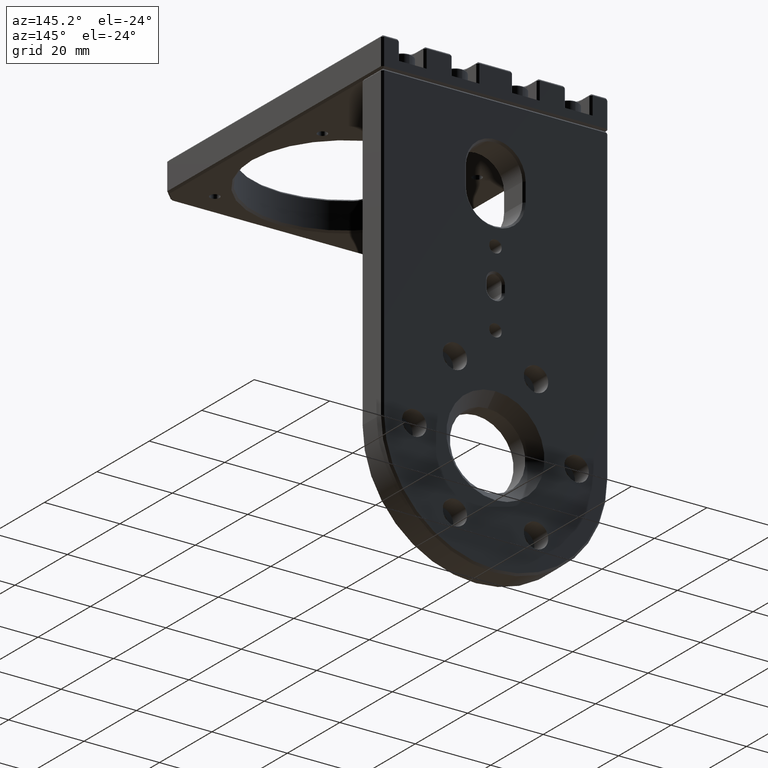
[diagram: clean part render]
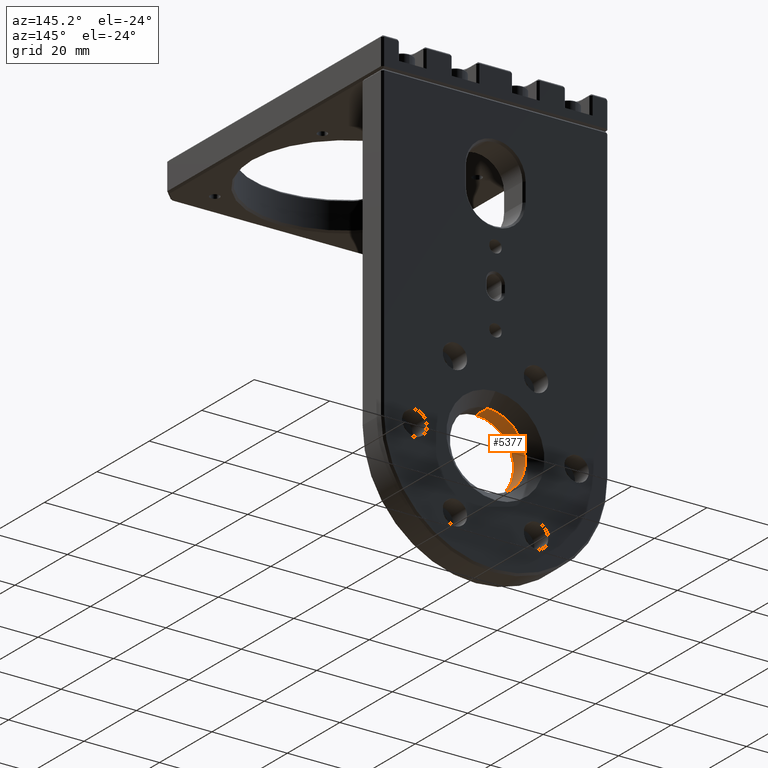
[diagram: same view with one face highlighted and labeled with its STEP entity id]
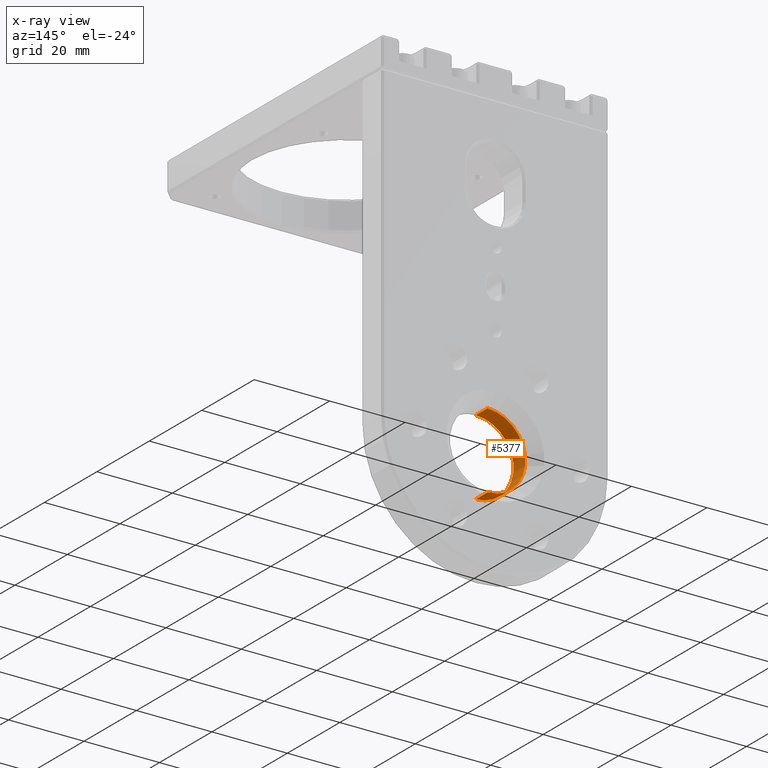
[diagram: x-ray of the same camera — body ghosted, the highlighted face saturated]
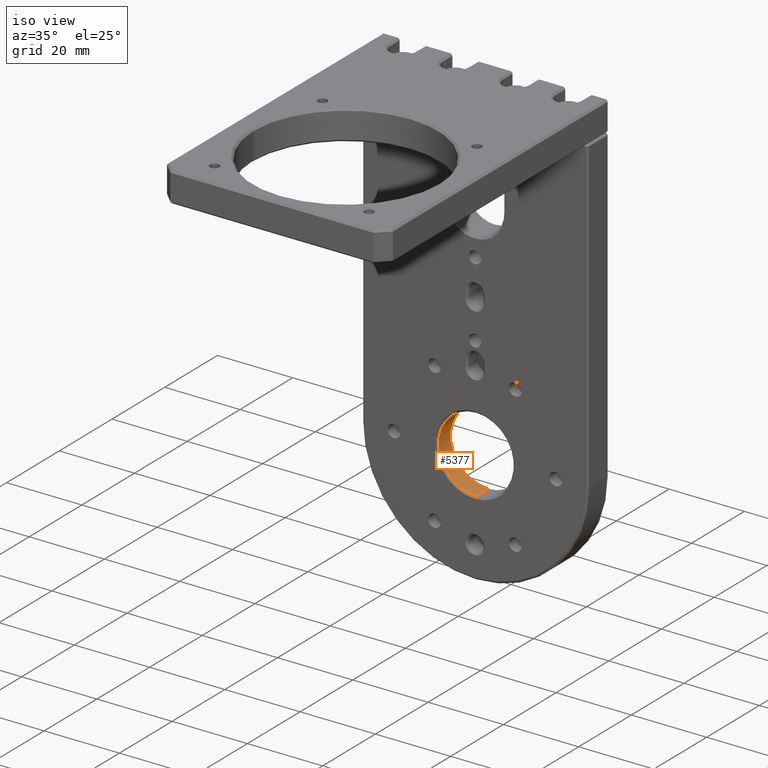
[diagram: same view with one face highlighted and labeled with its STEP entity id]
A machine part, auxiliary view. The second image highlights one B-rep face of the part: STEP entity #5377.
The next image is the same camera in x-ray: the body ghosted, the highlighted face saturated — about 0% of this face is hidden behind the body in this view.
A second angle (iso view) of the same face is appended — the face is thin or edge-on in the first view.
In plain terms, the highlighted cylindrical surface (partial cylindrical patch) has radius 10 mm, axis along (0, -1, -0).
Its self-contained STEP definition (entity closure, byte-faithful):
#374 = DIRECTION ( 'NONE',  ( 1.110223024625157172E-14, 0.0000000000000000000, 1.000000000000000000 ) ) ;
#435 = DIRECTION ( 'NONE',  ( -3.491481338843133355E-15, 1.000000000000000000, 3.657132581846951845E-29 ) ) ;
#813 = LINE ( 'NONE', #6496, #5959 ) ;
#853 = FACE_OUTER_BOUND ( 'NONE', #7158, .T. ) ;
#964 = VERTEX_POINT ( 'NONE', #6942 ) ;
#1040 = CARTESIAN_POINT ( 'NONE',  ( 135.1860777088450902, 141.2181840001565831, 113.4864618752671959 ) ) ;
#1222 = VERTEX_POINT ( 'NONE', #3513 ) ;
#1447 = VERTEX_POINT ( 'NONE', #3986 ) ;
#1466 = EDGE_CURVE ( 'NONE', #1222, #1447, #813, .T. ) ;
#1501 = CYLINDRICAL_SURFACE ( 'NONE', #2304, 9.999999999999994671 ) ;
#1580 = ORIENTED_EDGE ( 'NONE', *, *, #1466, .F. ) ;
#1638 = CARTESIAN_POINT ( 'NONE',  ( 135.1860777088449765, 138.2181840001565831, 103.4864618752671959 ) ) ;
#1768 = EDGE_CURVE ( 'NONE', #964, #1447, #2631, .T. ) ;
#2304 = AXIS2_PLACEMENT_3D ( 'NONE', #2748, #6409, #374 ) ;
#2631 = CIRCLE ( 'NONE', #7769, 9.999999999999994671 ) ;
#2748 = CARTESIAN_POINT ( 'NONE',  ( 135.1860777088449765, 141.2181840001565831, 103.4864618752671959 ) ) ;
#3089 = VECTOR ( 'NONE', #4657, 1000.000000000000000 ) ;
#3172 = CARTESIAN_POINT ( 'NONE',  ( 135.1860777088450050, 133.7181840001565831, 103.4864618752671959 ) ) ;
#3188 = ORIENTED_EDGE ( 'NONE', *, *, #4744, .T. ) ;
#3513 = CARTESIAN_POINT ( 'NONE',  ( 135.1860777088448913, 138.2181840001565831, 93.48646187526719586 ) ) ;
#3917 = DIRECTION ( 'NONE',  ( 8.326672684688678786E-15, 0.0000000000000000000, 1.000000000000000000 ) ) ;
#3986 = CARTESIAN_POINT ( 'NONE',  ( 135.1860777088448913, 133.7181840001565831, 93.48646187526719586 ) ) ;
#4264 = DIRECTION ( 'NONE',  ( 1.110223024625157172E-14, 0.0000000000000000000, 1.000000000000000000 ) ) ;
#4657 = DIRECTION ( 'NONE',  ( 3.491481338843133355E-15, -1.000000000000000000, -3.657132581846951845E-29 ) ) ;
#4744 = EDGE_CURVE ( 'NONE', #1222, #5154, #6791, .T. ) ;
#5154 = VERTEX_POINT ( 'NONE', #5485 ) ;
#5249 = AXIS2_PLACEMENT_3D ( 'NONE', #1638, #435, #3917 ) ;
#5377 = ADVANCED_FACE ( 'NONE', ( #853 ), #1501, .F. ) ;
#5485 = CARTESIAN_POINT ( 'NONE',  ( 135.1860777088450902, 138.2181840001565831, 113.4864618752671959 ) ) ;
#5725 = DIRECTION ( 'NONE',  ( 3.491481338843133355E-15, -1.000000000000000000, -3.657132581846951845E-29 ) ) ;
#5959 = VECTOR ( 'NONE', #5725, 1000.000000000000000 ) ;
#5981 = LINE ( 'NONE', #1040, #3089 ) ;
#6201 = DIRECTION ( 'NONE',  ( 3.491481338843133355E-15, -1.000000000000000000, -3.657132581846951845E-29 ) ) ;
#6409 = DIRECTION ( 'NONE',  ( 3.491481338843133355E-15, -1.000000000000000000, -3.657132581846951845E-29 ) ) ;
#6496 = CARTESIAN_POINT ( 'NONE',  ( 135.1860777088448629, 141.2181840001565831, 93.48646187526719586 ) ) ;
#6791 = CIRCLE ( 'NONE', #5249, 9.999999999999994671 ) ;
#6942 = CARTESIAN_POINT ( 'NONE',  ( 135.1860777088451187, 133.7181840001565831, 113.4864618752671959 ) ) ;
#7158 = EDGE_LOOP ( 'NONE', ( #1580, #3188, #7522, #7704 ) ) ;
#7392 = EDGE_CURVE ( 'NONE', #5154, #964, #5981, .T. ) ;
#7522 = ORIENTED_EDGE ( 'NONE', *, *, #7392, .T. ) ;
#7704 = ORIENTED_EDGE ( 'NONE', *, *, #1768, .T. ) ;
#7769 = AXIS2_PLACEMENT_3D ( 'NONE', #3172, #6201, #4264 ) ;